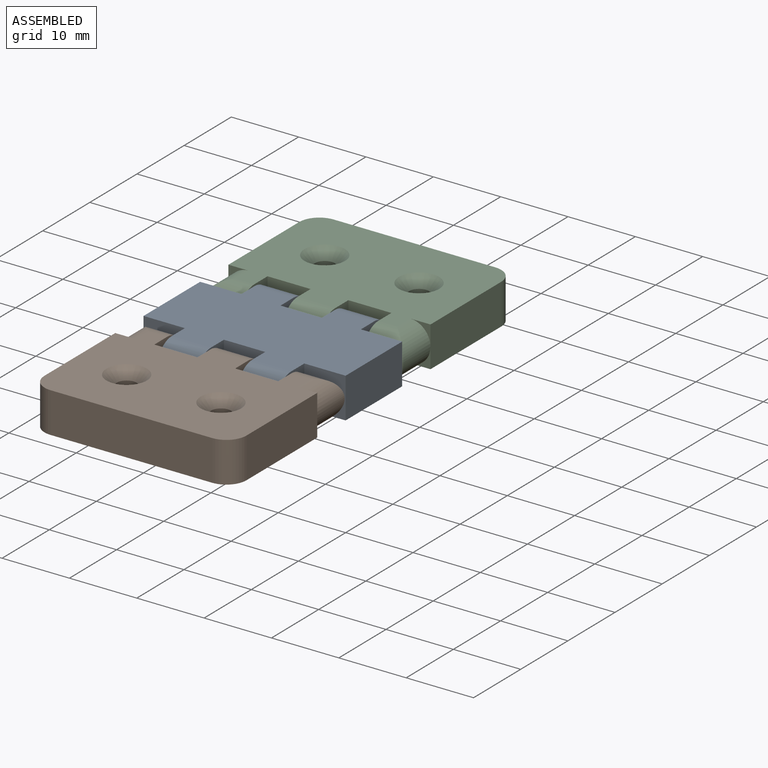
[diagram: assembled view]
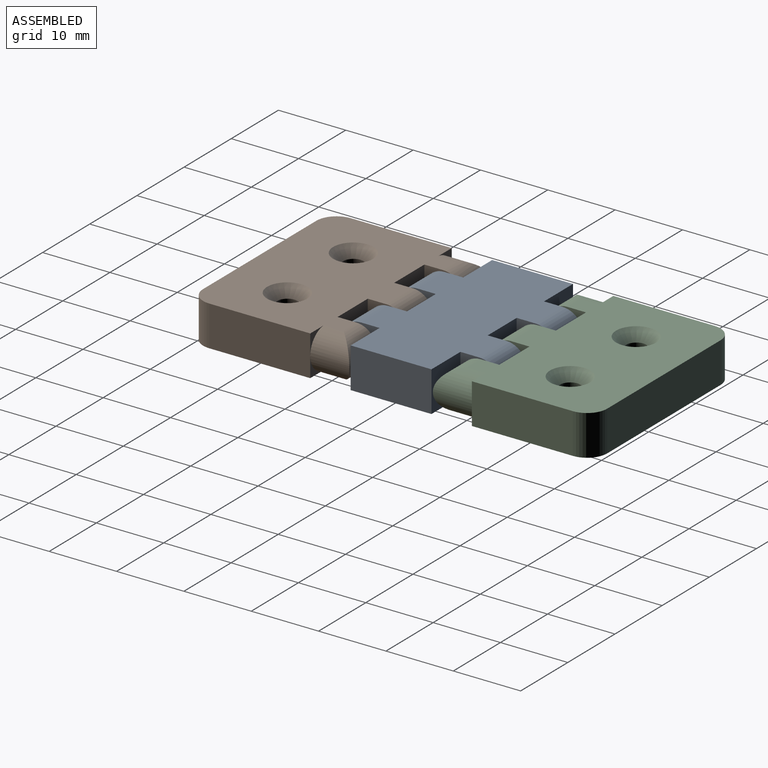
[diagram: assembled view, second angle]
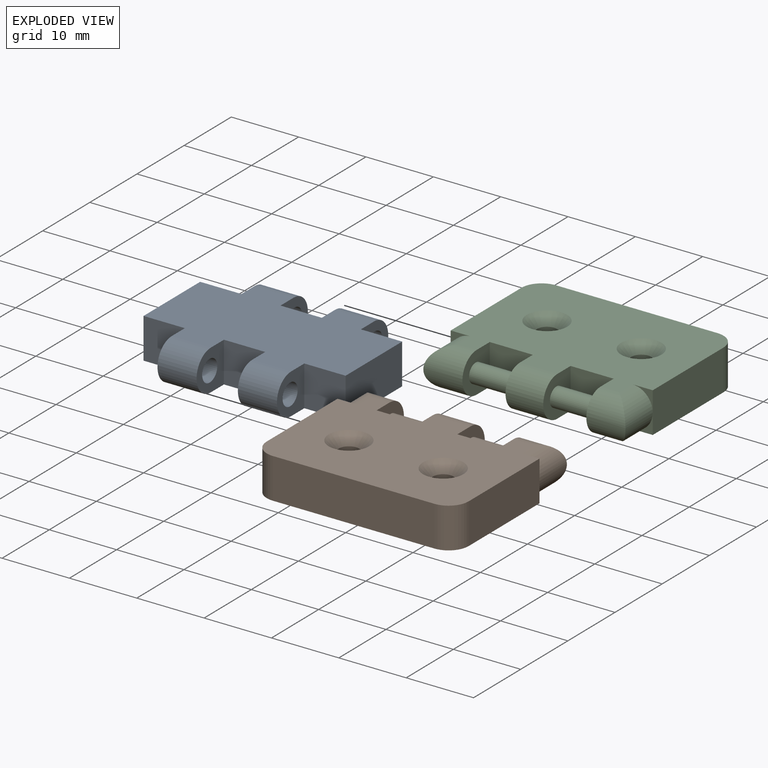
[diagram: exploded view]
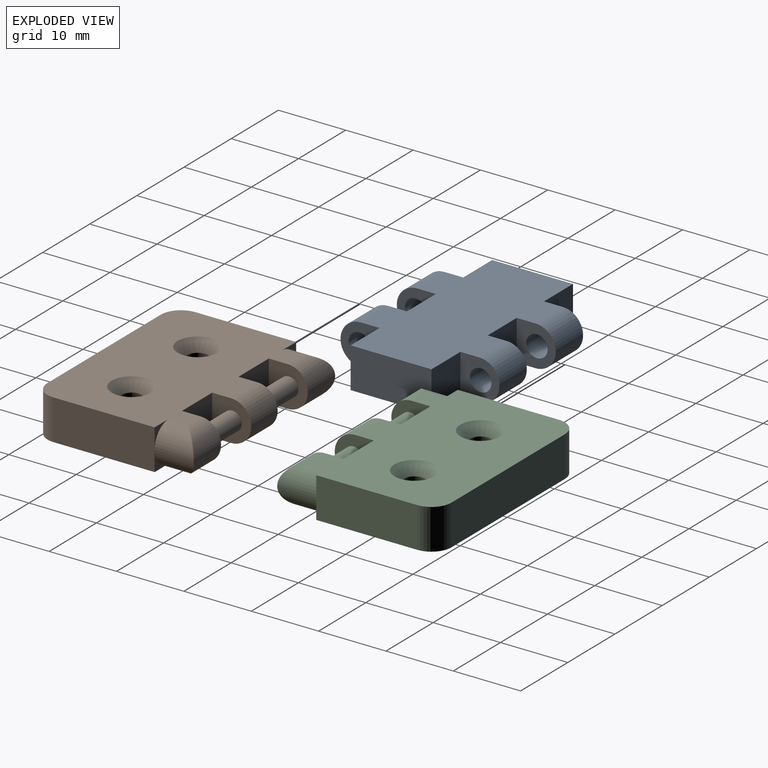
[diagram: exploded view, second angle]
ASSEMBLY  parts=3 mates=4
PART A: 26 faces, bbox 30x23.6x6 mm
  f0: plane 12x6mm, normal (-1,0,0), area 72mm2, adj f2,f3,f10,f14
  f1: plane 12x6mm, normal (1,0,0), area 72mm2, adj f2,f3,f12,f16
  f2: plane 30x17.6mm, normal (0,0,1), area 425mm2, adj f0,f1,f4,f5,f6,f7,f8,f9
  f3: plane 30x17.6mm, normal (0,0,-1), area 425mm2, adj f0,f1,f4,f5,f6,f7,f8,f9
  f4: plane 6x5.8mm, normal (1,0,0), area 22.9mm2, adj f2,f3,f5,f19,f25
  f5: plane 6.13x6mm, normal (0,1,0), area 36.8mm2, adj f2,f3,f4,f6
  f6: plane 6x5.8mm, normal (-1,0,0), area 22.9mm2, adj f2,f3,f5,f20,f22
  f7: plane 6x5.8mm, normal (1,0,0), area 22.9mm2, adj f2,f3,f9,f21,f24
  f8: plane 6x5.8mm, normal (-1,0,0), area 22.9mm2, adj f2,f3,f9,f18,f23
  f9: plane 6.13x6mm, normal (0,-1,0), area 36.8mm2, adj f2,f3,f7,f8
  f10: plane 6.13x6mm, normal (0,-1,0), area 36.8mm2, adj f0,f2,f3,f11
  f11: plane 6x5.8mm, normal (-1,0,0), area 22.9mm2, adj f2,f3,f10,f21,f24
  f12: plane 6.13x6mm, normal (0,1,0), area 36.8mm2, adj f1,f2,f3,f13
  f13: plane 6x5.8mm, normal (1,0,0), area 22.9mm2, adj f2,f3,f12,f20,f22
  f14: plane 6.13x6mm, normal (0,1,0), area 36.8mm2, adj f0,f2,f3,f15
  f15: plane 6x5.8mm, normal (-1,0,0), area 22.9mm2, adj f2,f3,f14,f19,f25
  f16: plane 6.13x6mm, normal (0,-1,0), area 36.8mm2, adj f1,f2,f3,f17
  f17: plane 6x5.8mm, normal (1,0,0), area 22.9mm2, adj f2,f3,f16,f18,f23
  f18: cylinder r=1.6mm len=5.8mm, axis (1,0,0), area 58.3mm2, adj f8,f17
  f19: cylinder r=1.6mm len=5.8mm, axis (1,0,0), area 58.3mm2, adj f4,f15
  f20: cylinder r=1.6mm len=5.8mm, axis (1,0,0), area 58.3mm2, adj f6,f13
  f21: cylinder r=1.6mm len=5.8mm, axis (1,0,0), area 58.3mm2, adj f7,f11
  f22: cylinder r=3mm len=6mm, axis (-1,0,0), area 54.7mm2, adj f2,f3,f6,f13
  f23: cylinder r=3mm len=6mm, axis (1,0,0), area 54.7mm2, adj f2,f3,f8,f17
  f24: cylinder r=3mm len=6mm, axis (-1,0,0), area 54.7mm2, adj f2,f3,f7,f11
  f25: cylinder r=3mm len=6mm, axis (1,0,0), area 54.7mm2, adj f2,f3,f4,f15
PART B: 28 faces, bbox 30x23.8x6 mm
  f0: plane 30x20.8mm, normal (0,0,1), area 510.9mm2, adj f2,f3,f4,f5,f6,f7,f8,f9
  f1: plane 30x20.8mm, normal (0,0,-1), area 553.4mm2, adj f2,f3,f4,f5,f6,f7,f8,f9
  f2: plane 15x6mm, normal (-1,0,0), area 90mm2, adj f0,f1,f15,f23,f26
  f3: plane 24x6mm, normal (0,-1,0), area 144mm2, adj f0,f1,f15,f16
  f4: plane 15x6mm, normal (1,0,0), area 90mm2, adj f0,f1,f16,f25,f27
  f5: plane 6x5.8mm, normal (1,0,0), area 24.8mm2, adj f0,f1,f6,f12,f14
  f6: plane 6.4x6mm, normal (0,1,0), area 38.4mm2, adj f0,f1,f5,f7
  f7: plane 6x5.8mm, normal (-1,0,0), area 24.8mm2, adj f0,f1,f6,f12,f13
  f8: plane 6x5.8mm, normal (1,0,0), area 24.8mm2, adj f0,f1,f9,f11,f17
  f9: plane 6.4x6mm, normal (0,1,0), area 38.4mm2, adj f0,f1,f8,f10
  f10: plane 6x5.8mm, normal (-1,0,0), area 24.8mm2, adj f0,f1,f9,f11,f14
  f11: cylinder r=1.4mm len=6.4mm, axis (1,0,0), area 56.3mm2, adj f8,f10
  f12: cylinder r=1.4mm len=6.4mm, axis (1,0,0), area 56.3mm2, adj f5,f7
  f13: cylinder r=3mm len=6mm, axis (-1,0,0), area 44.4mm2, adj f0,f1,f7,f24
  f14: cylinder r=3mm len=6mm, axis (-1,0,0), area 52.8mm2, adj f0,f1,f5,f10
  f15: cylinder r=3mm len=6mm, axis (0,0,1), area 28.3mm2, adj f0,f1,f2,f3
  f16: cylinder r=3mm len=6mm, axis (0,0,-1), area 28.3mm2, adj f0,f1,f3,f4
  f17: cylinder r=3mm len=6mm, axis (1,0,0), area 44.4mm2, adj f0,f1,f8,f22
  f18: cylinder r=1.5mm len=4.5mm, axis (0,0,1), area 42.4mm2, adj f1,f20
  f19: cylinder r=1.5mm len=4.5mm, axis (0,0,1), area 42.4mm2, adj f1,f21
  f20: cone r=1.5mm half-angle=45deg, axis (0,0,1), area 30mm2, adj f0,f18
  f21: cone r=1.5mm half-angle=45deg, axis (0,0,1), area 30mm2, adj f0,f19
  f22: cylinder r=3mm len=6mm, axis (0,1,0), area 44.4mm2, adj f0,f1,f17,f23,f26
  f23: plane 3x3mm, normal (0,1,0), area 1.9mm2, adj f1,f2,f22
  f24: cylinder r=3mm len=6mm, axis (0,1,0), area 44.4mm2, adj f0,f1,f13,f25,f27
  f25: plane 3x3mm, normal (0,1,0), area 1.9mm2, adj f0,f4,f24
  f26: plane 3x3mm, normal (0,1,0), area 1.9mm2, adj f0,f2,f22
  f27: plane 3x3mm, normal (0,1,0), area 1.9mm2, adj f1,f4,f24
PART C: same geometry as B
PLACE A rot(axis=(1,0,0),0deg) t=(-7.27,-39.84,-18.61)mm
PLACE B t=(-7.27,-19.33,-18.61)mm fixed
PLACE C rot(axis=(0,0,1),180deg) t=(22.73,40.67,-18.61)mm
MATE planar A.f0 <-> C.f4  axis (-1,0,0) through (-7.27,10.67,-15.61)mm
MATE cylindrical A.f19 <-> C.f11  axis (1,0,0) through (10.8,19.67,-15.61)mm
MATE cylindrical A.f18 <-> B.f11  axis (-1,0,0) through (-1.14,1.67,-15.61)mm
MATE planar A.f0 <-> B.f2  axis (-1,0,0) through (-7.27,10.67,-15.61)mm
